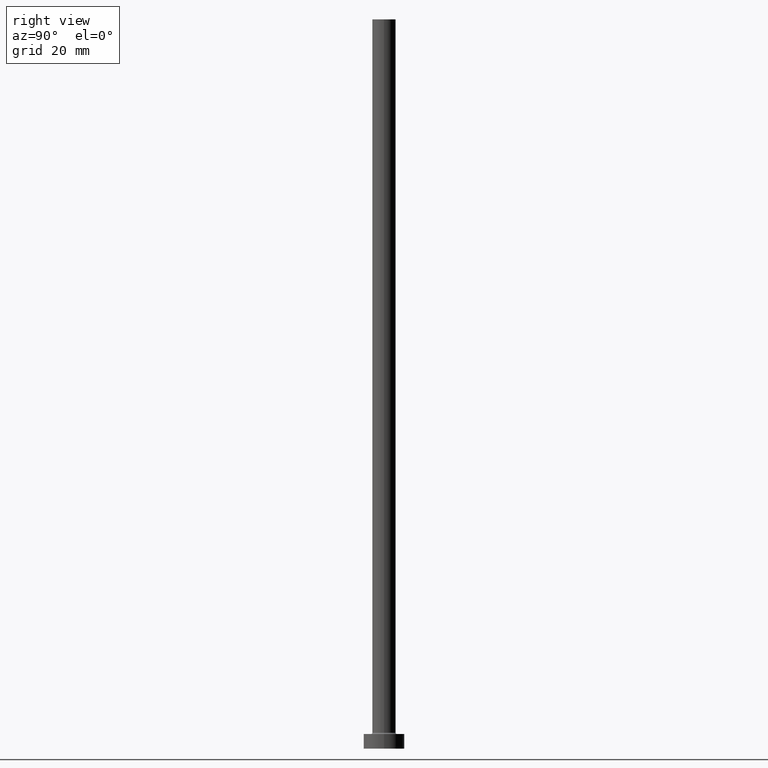
[diagram: clean part render]
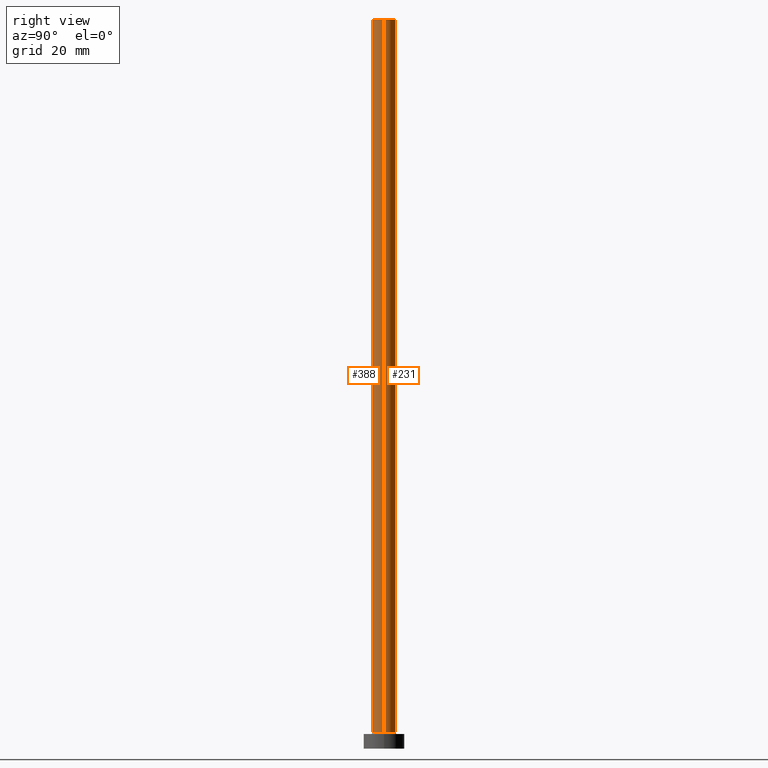
[diagram: same view with one multi-face feature highlighted, each face labeled with its STEP entity id]
A machine part, right view. The highlighted faces form ONE feature: a constant-radius fillet chain: 2 tangent blend faces with common blend radius 4 mm. The faces share edges in the B-rep.
Their STEP definitions:
[1] entity #231 (Cylinder):
#1 = DIRECTION ( 'NONE',  ( -1.000000000000000000, 0.000000000000000000, 0.000000000000000000 ) ) ;
#5 = EDGE_CURVE ( 'NONE', #294, #237, #119, .T. ) ;
#6 = CARTESIAN_POINT ( 'NONE',  ( -4.000000000000000000, 0.000000000000000000, 250.0000000000000000 ) ) ;
#14 = CARTESIAN_POINT ( 'NONE',  ( 0.000000000000000000, 0.000000000000000000, 250.0000000000000000 ) ) ;
#45 = VERTEX_POINT ( 'NONE', #275 ) ;
#49 = DIRECTION ( 'NONE',  ( -0.000000000000000000, -0.000000000000000000, -1.000000000000000000 ) ) ;
#55 = CIRCLE ( 'NONE', #128, 4.000000000000000000 ) ;
#56 = EDGE_CURVE ( 'NONE', #237, #45, #93, .T. ) ;
#63 = CARTESIAN_POINT ( 'NONE',  ( 0.000000000000000000, 0.000000000000000000, 250.0000000000000000 ) ) ;
#73 = DIRECTION ( 'NONE',  ( 1.000000000000000000, 0.000000000000000000, 0.000000000000000000 ) ) ;
#84 = LINE ( 'NONE', #379, #154 ) ;
#93 = LINE ( 'NONE', #424, #343 ) ;
#94 = EDGE_LOOP ( 'NONE', ( #188, #385, #324, #108 ) ) ;
#108 = ORIENTED_EDGE ( 'NONE', *, *, #56, .F. ) ;
#119 = CIRCLE ( 'NONE', #423, 4.000000000000000000 ) ;
#128 = AXIS2_PLACEMENT_3D ( 'NONE', #443, #182, #73 ) ;
#129 = EDGE_CURVE ( 'NONE', #389, #45, #55, .T. ) ;
#154 = VECTOR ( 'NONE', #49, 1000.000000000000000 ) ;
#163 = DIRECTION ( 'NONE',  ( -0.000000000000000000, -0.000000000000000000, -1.000000000000000000 ) ) ;
#177 = FACE_OUTER_BOUND ( 'NONE', #94, .T. ) ;
#182 = DIRECTION ( 'NONE',  ( 0.000000000000000000, 0.000000000000000000, 1.000000000000000000 ) ) ;
#188 = ORIENTED_EDGE ( 'NONE', *, *, #5, .F. ) ;
#192 = AXIS2_PLACEMENT_3D ( 'NONE', #63, #331, #1 ) ;
#231 = ADVANCED_FACE ( 'NONE', ( #177 ), #336, .T. ) ;
#233 = DIRECTION ( 'NONE',  ( 1.000000000000000000, 0.000000000000000000, 0.000000000000000000 ) ) ;
#237 = VERTEX_POINT ( 'NONE', #6 ) ;
#270 = CARTESIAN_POINT ( 'NONE',  ( 4.000000000000000000, 4.898587196589412829E-16, 5.500000000000005329 ) ) ;
#275 = CARTESIAN_POINT ( 'NONE',  ( -4.000000000000000000, 0.000000000000000000, 5.500000000000005329 ) ) ;
#277 = DIRECTION ( 'NONE',  ( 0.000000000000000000, 0.000000000000000000, 1.000000000000000000 ) ) ;
#294 = VERTEX_POINT ( 'NONE', #457 ) ;
#324 = ORIENTED_EDGE ( 'NONE', *, *, #129, .T. ) ;
#326 = EDGE_CURVE ( 'NONE', #294, #389, #84, .T. ) ;
#331 = DIRECTION ( 'NONE',  ( -0.000000000000000000, -0.000000000000000000, -1.000000000000000000 ) ) ;
#336 = CYLINDRICAL_SURFACE ( 'NONE', #192, 4.000000000000000000 ) ;
#343 = VECTOR ( 'NONE', #163, 1000.000000000000000 ) ;
#379 = CARTESIAN_POINT ( 'NONE',  ( 4.000000000000000000, 4.898587196589412829E-16, 250.0000000000000000 ) ) ;
#385 = ORIENTED_EDGE ( 'NONE', *, *, #326, .T. ) ;
#389 = VERTEX_POINT ( 'NONE', #270 ) ;
#423 = AXIS2_PLACEMENT_3D ( 'NONE', #14, #277, #233 ) ;
#424 = CARTESIAN_POINT ( 'NONE',  ( -4.000000000000000000, 0.000000000000000000, 250.0000000000000000 ) ) ;
#443 = CARTESIAN_POINT ( 'NONE',  ( 0.000000000000000000, 0.000000000000000000, 5.500000000000005329 ) ) ;
#457 = CARTESIAN_POINT ( 'NONE',  ( 4.000000000000000000, 4.898587196589412829E-16, 250.0000000000000000 ) ) ;
[2] entity #388 (Cylinder):
#3 = CARTESIAN_POINT ( 'NONE',  ( 0.000000000000000000, 0.000000000000000000, 250.0000000000000000 ) ) ;
#6 = CARTESIAN_POINT ( 'NONE',  ( -4.000000000000000000, 0.000000000000000000, 250.0000000000000000 ) ) ;
#28 = EDGE_CURVE ( 'NONE', #45, #389, #208, .T. ) ;
#45 = VERTEX_POINT ( 'NONE', #275 ) ;
#49 = DIRECTION ( 'NONE',  ( -0.000000000000000000, -0.000000000000000000, -1.000000000000000000 ) ) ;
#54 = EDGE_LOOP ( 'NONE', ( #230, #234, #221, #371 ) ) ;
#56 = EDGE_CURVE ( 'NONE', #237, #45, #93, .T. ) ;
#69 = DIRECTION ( 'NONE',  ( 1.000000000000000000, 0.000000000000000000, 0.000000000000000000 ) ) ;
#72 = AXIS2_PLACEMENT_3D ( 'NONE', #3, #430, #150 ) ;
#84 = LINE ( 'NONE', #379, #154 ) ;
#93 = LINE ( 'NONE', #424, #343 ) ;
#120 = CARTESIAN_POINT ( 'NONE',  ( 0.000000000000000000, 0.000000000000000000, 5.500000000000005329 ) ) ;
#123 = DIRECTION ( 'NONE',  ( 0.000000000000000000, 0.000000000000000000, 1.000000000000000000 ) ) ;
#150 = DIRECTION ( 'NONE',  ( -1.000000000000000000, 0.000000000000000000, 0.000000000000000000 ) ) ;
#154 = VECTOR ( 'NONE', #49, 1000.000000000000000 ) ;
#163 = DIRECTION ( 'NONE',  ( -0.000000000000000000, -0.000000000000000000, -1.000000000000000000 ) ) ;
#208 = CIRCLE ( 'NONE', #278, 4.000000000000000000 ) ;
#210 = DIRECTION ( 'NONE',  ( 0.000000000000000000, 0.000000000000000000, 1.000000000000000000 ) ) ;
#221 = ORIENTED_EDGE ( 'NONE', *, *, #56, .T. ) ;
#225 = EDGE_CURVE ( 'NONE', #237, #294, #354, .T. ) ;
#230 = ORIENTED_EDGE ( 'NONE', *, *, #326, .F. ) ;
#234 = ORIENTED_EDGE ( 'NONE', *, *, #225, .F. ) ;
#237 = VERTEX_POINT ( 'NONE', #6 ) ;
#240 = AXIS2_PLACEMENT_3D ( 'NONE', #289, #210, #69 ) ;
#270 = CARTESIAN_POINT ( 'NONE',  ( 4.000000000000000000, 4.898587196589412829E-16, 5.500000000000005329 ) ) ;
#275 = CARTESIAN_POINT ( 'NONE',  ( -4.000000000000000000, 0.000000000000000000, 5.500000000000005329 ) ) ;
#278 = AXIS2_PLACEMENT_3D ( 'NONE', #120, #123, #322 ) ;
#288 = CYLINDRICAL_SURFACE ( 'NONE', #72, 4.000000000000000000 ) ;
#289 = CARTESIAN_POINT ( 'NONE',  ( 0.000000000000000000, 0.000000000000000000, 250.0000000000000000 ) ) ;
#294 = VERTEX_POINT ( 'NONE', #457 ) ;
#322 = DIRECTION ( 'NONE',  ( 1.000000000000000000, 0.000000000000000000, 0.000000000000000000 ) ) ;
#326 = EDGE_CURVE ( 'NONE', #294, #389, #84, .T. ) ;
#329 = FACE_OUTER_BOUND ( 'NONE', #54, .T. ) ;
#343 = VECTOR ( 'NONE', #163, 1000.000000000000000 ) ;
#354 = CIRCLE ( 'NONE', #240, 4.000000000000000000 ) ;
#371 = ORIENTED_EDGE ( 'NONE', *, *, #28, .T. ) ;
#379 = CARTESIAN_POINT ( 'NONE',  ( 4.000000000000000000, 4.898587196589412829E-16, 250.0000000000000000 ) ) ;
#388 = ADVANCED_FACE ( 'NONE', ( #329 ), #288, .T. ) ;
#389 = VERTEX_POINT ( 'NONE', #270 ) ;
#424 = CARTESIAN_POINT ( 'NONE',  ( -4.000000000000000000, 0.000000000000000000, 250.0000000000000000 ) ) ;
#430 = DIRECTION ( 'NONE',  ( -0.000000000000000000, -0.000000000000000000, -1.000000000000000000 ) ) ;
#457 = CARTESIAN_POINT ( 'NONE',  ( 4.000000000000000000, 4.898587196589412829E-16, 250.0000000000000000 ) ) ;